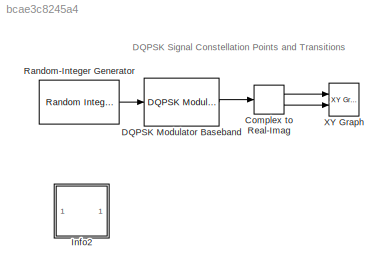
MODEL slx_bcae3c8245a4
KIND model
BLOCK [ComplexToRealImag] Complex to Real-Imag
  Ports = [1, 2]
BLOCK [Reference] DQPSK Modulator Baseband  REF=commdigbbndpm3/DQPSK
Modulator
Baseband
  Enc = Binary
  InType = Integer
  Ph = pi/4
  Ports = [1, 1]
  SourceBlock = commdigbbndpm3/DQPSK\nModulator\nBaseband
  SourceType = DQPSK Modulator Baseband
  outDtype = double
BLOCK [SubSystem] Info2
  AncestorBlock = commblksprivate/Info
  OpenFcn = helpview([docroot '/toolbox/comm/comm.map'], 'doc_dqpsk_plot')
  Ports = []
  RequestExecContextInheritance = off
BLOCK [Reference] Random-Integer Generator  REF=commrandsrc2/Random Integer
Generator
  Ports = [0, 1]
  SourceBlock = commrandsrc2/Random Integer\nGenerator
  SourceType = Random Integer Generator
  Ts = .01
  frameBased = off
  mul = 4
  orient = off
  outDataType = double
  sampPerFrame = 1
  seed = 12345
BLOCK [Reference] XY Graph  REF=simulink/Sinks/XY Graph
  Ports = [2]
  SourceBlock = simulink/Sinks/XY Graph
  SourceType = XY scope.
  st = -1
  xmax = 1
  xmin = -1
  ymax = 1
  ymin = -1
ANNOTATION (root): DQPSK Signal Constellation Points and Transitions
LINE Complex to Real-Imag:1 -> XY Graph:1
LINE Complex to Real-Imag:2 -> XY Graph:2
LINE DQPSK Modulator Baseband:1 -> Complex to Real-Imag:1
LINE Random-Integer Generator:1 -> DQPSK Modulator Baseband:1
